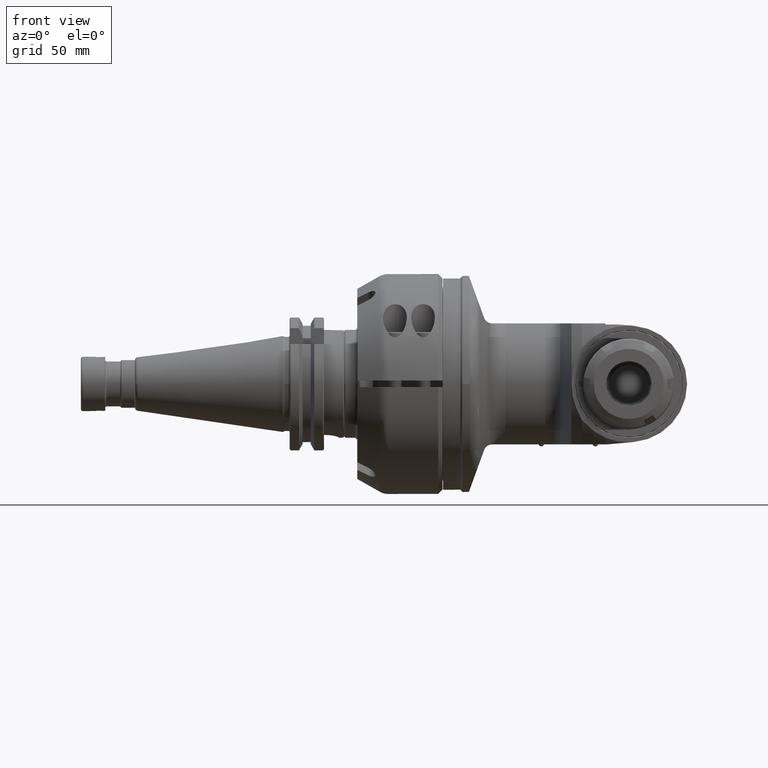
[diagram: clean part render]
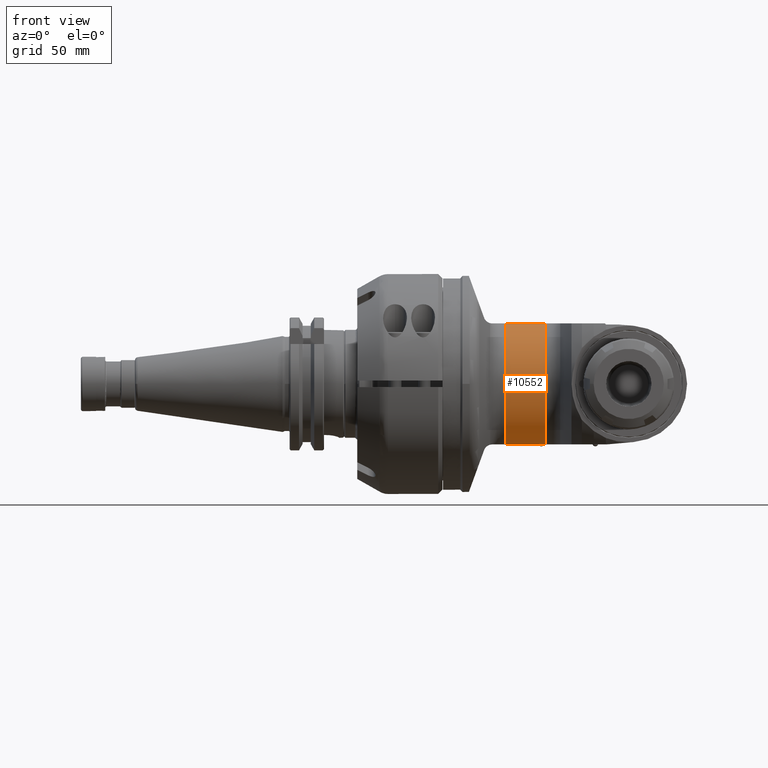
[diagram: same view with one face highlighted and labeled with its STEP entity id]
A machine part, front view. The second image highlights one B-rep face of the part: STEP entity #10552.
In plain terms, the highlighted cylindrical surface (partial cylindrical patch) has radius 32 mm, axis along (-1, -0, 0).
Its self-contained STEP definition (entity closure, byte-faithful):
#1230=FACE_OUTER_BOUND('',#1913,.T.);
#1913=EDGE_LOOP('',(#9021,#9022,#9023,#9024));
#2457=CIRCLE('',#11532,32.);
#2459=CIRCLE('',#11535,32.);
#3337=LINE('',#55190,#3995);
#3344=LINE('',#55354,#4002);
#3995=VECTOR('',#13847,18.39109797347);
#4002=VECTOR('',#13870,18.39109797347);
#4892=VERTEX_POINT('',#55176);
#4893=VERTEX_POINT('',#55189);
#4915=VERTEX_POINT('',#55329);
#4918=VERTEX_POINT('',#55353);
#6309=EDGE_CURVE('',#4893,#4892,#3337,.T.);
#6334=EDGE_CURVE('',#4915,#4892,#2457,.T.);
#6338=EDGE_CURVE('',#4915,#4918,#3344,.T.);
#6339=EDGE_CURVE('',#4893,#4918,#2459,.T.);
#9021=ORIENTED_EDGE('',*,*,#6334,.F.);
#9022=ORIENTED_EDGE('',*,*,#6338,.T.);
#9023=ORIENTED_EDGE('',*,*,#6339,.F.);
#9024=ORIENTED_EDGE('',*,*,#6309,.T.);
#10066=CYLINDRICAL_SURFACE('',#11534,32.);
#10552=ADVANCED_FACE('',(#1230),#10066,.T.);
#11532=AXIS2_PLACEMENT_3D('',#55330,#13864,#13865);
#11534=AXIS2_PLACEMENT_3D('',#55352,#13868,#13869);
#11535=AXIS2_PLACEMENT_3D('',#55355,#13871,#13872);
#13847=DIRECTION('',(-1.,0.,0.));
#13864=DIRECTION('center_axis',(-1.,0.,0.));
#13865=DIRECTION('ref_axis',(0.,-0.484122918275906,-0.875000000000012));
#13868=DIRECTION('center_axis',(-1.,0.,0.));
#13869=DIRECTION('ref_axis',(0.,-1.,0.));
#13870=DIRECTION('',(1.,0.,0.));
#13871=DIRECTION('center_axis',(1.,0.,0.));
#13872=DIRECTION('ref_axis',(0.,-1.,0.));
#55176=CARTESIAN_POINT('',(32.99009987301,-15.49193338483,28.));
#55189=CARTESIAN_POINT('',(51.38119784648,-15.49193338483,28.));
#55190=CARTESIAN_POINT('',(51.38119784648,-15.49193338483,28.));
#55329=CARTESIAN_POINT('',(32.99009987301,-15.49193338483,-28.));
#55330=CARTESIAN_POINT('Origin',(32.99009987301,0.,0.));
#55352=CARTESIAN_POINT('Origin',(41.64644709714,0.,0.));
#55353=CARTESIAN_POINT('',(51.38119784648,-15.49193338483,-28.));
#55354=CARTESIAN_POINT('',(32.99009987301,-15.49193338483,-28.));
#55355=CARTESIAN_POINT('Origin',(51.38119784648,0.,0.));